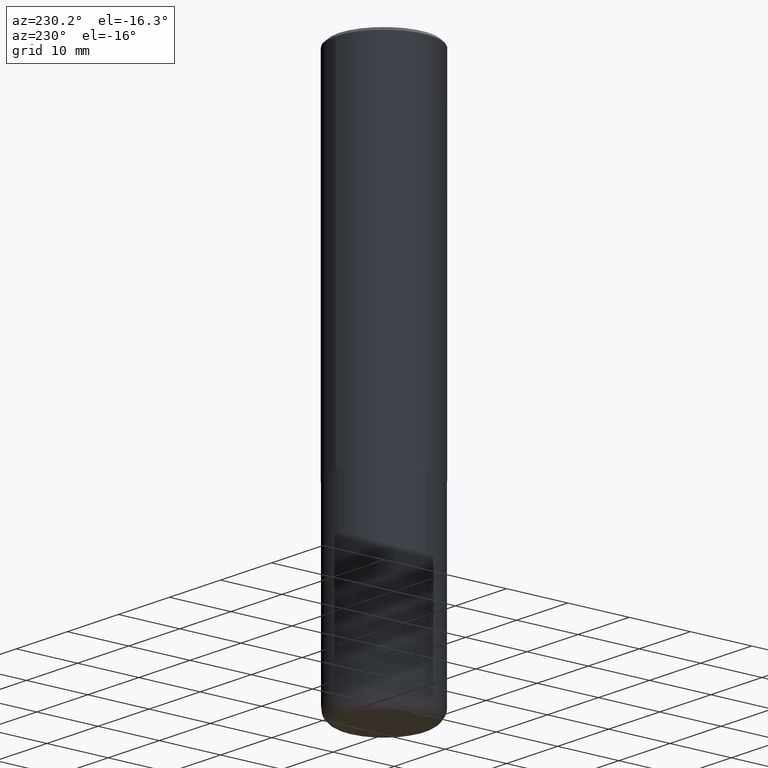
[diagram: clean part render]
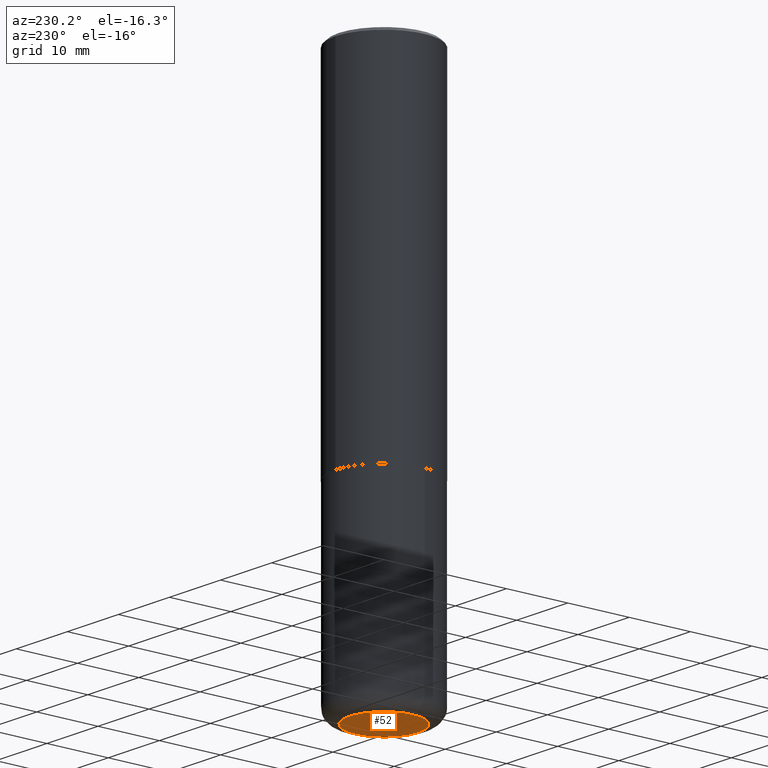
[diagram: same view with one face highlighted and labeled with its STEP entity id]
A machine part, auxiliary view. The second image highlights one B-rep face of the part: STEP entity #52.
In plain terms, the highlighted planar face has unit normal (0, -0, -1).
Its self-contained STEP definition (entity closure, byte-faithful):
#33 = EDGE_CURVE ( 'NONE', #399, #58, #264, .T. ) ;
#42 = DIRECTION ( 'NONE',  ( 1.000000000000000000, -6.982962677686269077E-15, 0.000000000000000000 ) ) ;
#52 = ADVANCED_FACE ( 'NONE', ( #292 ), #390, .T. ) ;
#58 = VERTEX_POINT ( 'NONE', #331 ) ;
#83 = CIRCLE ( 'NONE', #134, 0.2225000000000000033 ) ;
#91 = ORIENTED_EDGE ( 'NONE', *, *, #201, .F. ) ;
#103 = DIRECTION ( 'NONE',  ( 2.438088387897960049E-29, -3.491481338843145188E-15, -1.000000000000000000 ) ) ;
#109 = CARTESIAN_POINT ( 'NONE',  ( 8.559140821647976968E-29, -1.222018468595100619E-14, -3.499999999999999112 ) ) ;
#112 = ORIENTED_EDGE ( 'NONE', *, *, #33, .F. ) ;
#124 = EDGE_LOOP ( 'NONE', ( #91, #112 ) ) ;
#125 = AXIS2_PLACEMENT_3D ( 'NONE', #109, #268, #301 ) ;
#134 = AXIS2_PLACEMENT_3D ( 'NONE', #266, #327, #42 ) ;
#189 = CARTESIAN_POINT ( 'NONE',  ( -0.2225000000000000033, -1.016236620754480236E-14, -3.499999999999999112 ) ) ;
#198 = CARTESIAN_POINT ( 'NONE',  ( 1.456070253248337680E-28, -3.625606728355569702E-15, -3.499999999999999112 ) ) ;
#201 = EDGE_CURVE ( 'NONE', #58, #399, #83, .T. ) ;
#234 = DIRECTION ( 'NONE',  ( -1.000000000000000000, 6.982962677686265922E-15, -4.876176775795935793E-29 ) ) ;
#264 = CIRCLE ( 'NONE', #125, 0.2225000000000000033 ) ;
#266 = CARTESIAN_POINT ( 'NONE',  ( 8.559140821647976968E-29, -1.222018468595100619E-14, -3.499999999999999112 ) ) ;
#268 = DIRECTION ( 'NONE',  ( -2.445468806185136597E-29, 3.491481338843145583E-15, 1.000000000000000000 ) ) ;
#292 = FACE_OUTER_BOUND ( 'NONE', #124, .T. ) ;
#298 = AXIS2_PLACEMENT_3D ( 'NONE', #198, #103, #234 ) ;
#301 = DIRECTION ( 'NONE',  ( 1.000000000000000000, -6.982962677686269077E-15, 0.000000000000000000 ) ) ;
#327 = DIRECTION ( 'NONE',  ( -2.445468806185136597E-29, 3.491481338843145583E-15, 1.000000000000000000 ) ) ;
#331 = CARTESIAN_POINT ( 'NONE',  ( 0.2225000000000000033, -1.377389388173620116E-14, -3.499999999999999112 ) ) ;
#390 = PLANE ( 'NONE',  #298 ) ;
#399 = VERTEX_POINT ( 'NONE', #189 ) ;